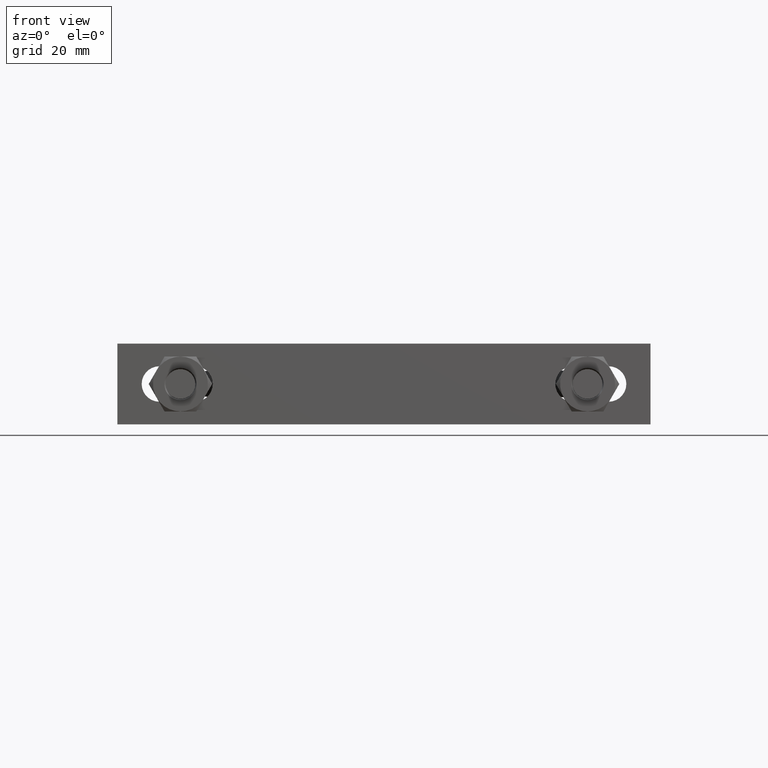
[diagram: clean part render]
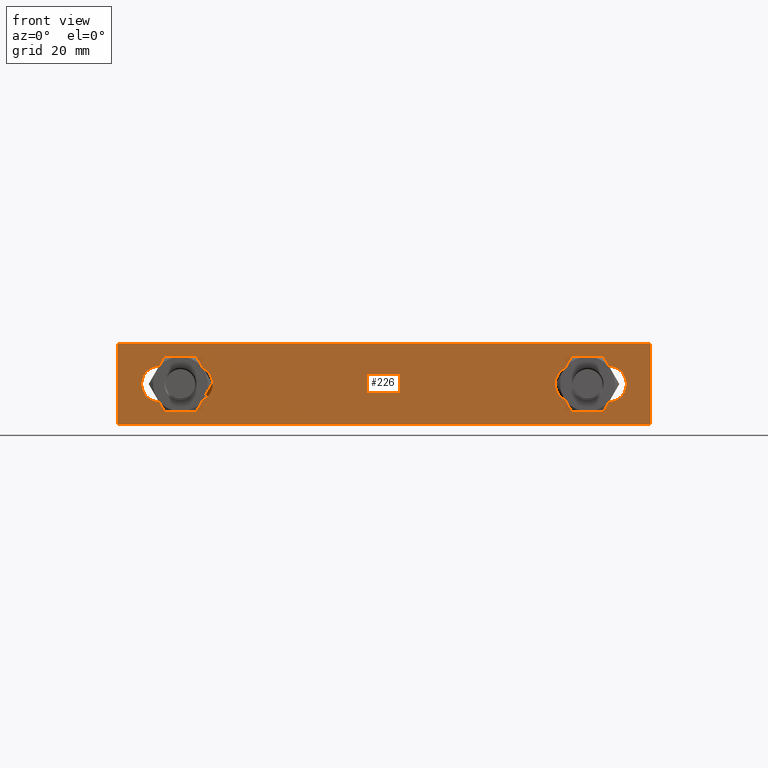
[diagram: same view with one face highlighted and labeled with its STEP entity id]
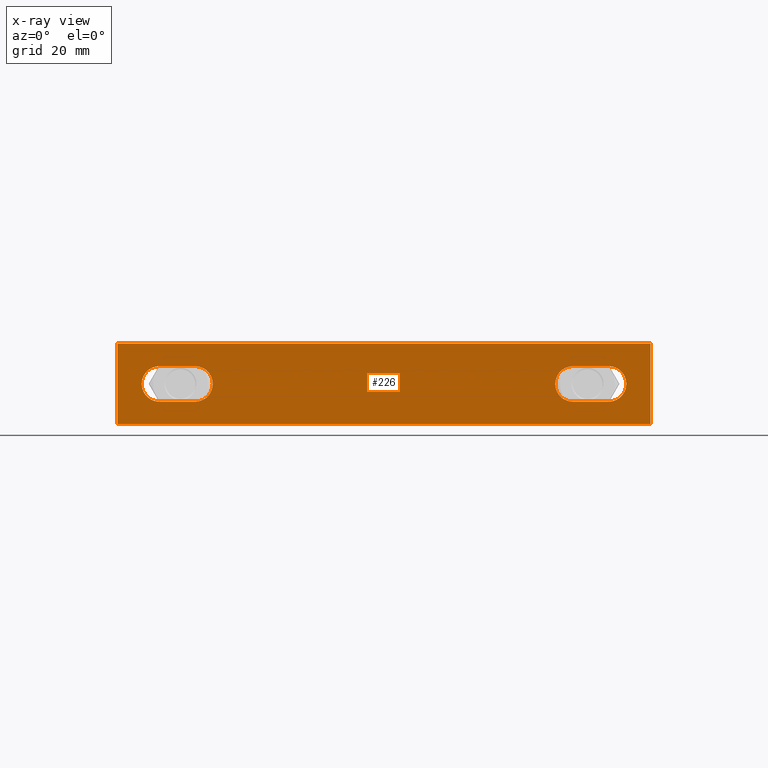
[diagram: x-ray of the same camera — body ghosted, the highlighted face saturated]
A machine part, front view. The second image highlights one B-rep face of the part: STEP entity #226.
The next image is the same camera in x-ray: the body ghosted, the highlighted face saturated — about 0% of this face is hidden behind the body in this view.
In plain terms, the highlighted planar face has unit normal (0, -1, 0).
Its self-contained STEP definition (entity closure, byte-faithful):
#226 = ADVANCED_FACE( '', ( #310, #311, #312 ), #313, .T. );
#310 = FACE_BOUND( '', #630, .T. );
#311 = FACE_OUTER_BOUND( '', #631, .T. );
#312 = FACE_BOUND( '', #632, .T. );
#313 = PLANE( '', #633 );
#630 = EDGE_LOOP( '', ( #802, #803, #804, #805, #806, #807 ) );
#631 = EDGE_LOOP( '', ( #808, #809, #810, #811 ) );
#632 = EDGE_LOOP( '', ( #812, #813, #814, #815, #816, #817 ) );
#633 = AXIS2_PLACEMENT_3D( '', #818, #819, #820 );
#802 = ORIENTED_EDGE( '', *, *, #1304, .F. );
#803 = ORIENTED_EDGE( '', *, *, #1305, .F. );
#804 = ORIENTED_EDGE( '', *, *, #1306, .F. );
#805 = ORIENTED_EDGE( '', *, *, #1307, .F. );
#806 = ORIENTED_EDGE( '', *, *, #1308, .F. );
#807 = ORIENTED_EDGE( '', *, *, #1309, .F. );
#808 = ORIENTED_EDGE( '', *, *, #1310, .T. );
#809 = ORIENTED_EDGE( '', *, *, #1311, .T. );
#810 = ORIENTED_EDGE( '', *, *, #1312, .T. );
#811 = ORIENTED_EDGE( '', *, *, #1313, .T. );
#812 = ORIENTED_EDGE( '', *, *, #1314, .F. );
#813 = ORIENTED_EDGE( '', *, *, #1315, .F. );
#814 = ORIENTED_EDGE( '', *, *, #1316, .F. );
#815 = ORIENTED_EDGE( '', *, *, #1317, .F. );
#816 = ORIENTED_EDGE( '', *, *, #1318, .F. );
#817 = ORIENTED_EDGE( '', *, *, #1319, .F. );
#818 = CARTESIAN_POINT( '', ( -82.5000000000000, -5.80000000000000, -12.5000000000000 ) );
#819 = DIRECTION( '', ( 0.000000000000000, -1.00000000000000, 6.12303176911189E-017 ) );
#820 = DIRECTION( '', ( 0.000000000000000, -6.12303176911189E-017, -1.00000000000000 ) );
#1304 = EDGE_CURVE( '', #1468, #1469, #1470, .T. );
#1305 = EDGE_CURVE( '', #1471, #1468, #1472, .F. );
#1306 = EDGE_CURVE( '', #1473, #1471, #1474, .F. );
#1307 = EDGE_CURVE( '', #1475, #1473, #1476, .T. );
#1308 = EDGE_CURVE( '', #1477, #1475, #1478, .F. );
#1309 = EDGE_CURVE( '', #1469, #1477, #1479, .F. );
#1310 = EDGE_CURVE( '', #1480, #1481, #1482, .T. );
#1311 = EDGE_CURVE( '', #1481, #1483, #1484, .T. );
#1312 = EDGE_CURVE( '', #1483, #1485, #1486, .T. );
#1313 = EDGE_CURVE( '', #1485, #1480, #1487, .T. );
#1314 = EDGE_CURVE( '', #1488, #1489, #1490, .T. );
#1315 = EDGE_CURVE( '', #1491, #1488, #1492, .F. );
#1316 = EDGE_CURVE( '', #1493, #1491, #1494, .F. );
#1317 = EDGE_CURVE( '', #1495, #1493, #1496, .T. );
#1318 = EDGE_CURVE( '', #1497, #1495, #1498, .F. );
#1319 = EDGE_CURVE( '', #1489, #1497, #1499, .F. );
#1468 = VERTEX_POINT( '', #1750 );
#1469 = VERTEX_POINT( '', #1751 );
#1470 = LINE( '', #1752, #1753 );
#1471 = VERTEX_POINT( '', #1754 );
#1472 = CIRCLE( '', #1755, 5.50000000000001 );
#1473 = VERTEX_POINT( '', #1756 );
#1474 = CIRCLE( '', #1757, 5.50000000000000 );
#1475 = VERTEX_POINT( '', #1758 );
#1476 = LINE( '', #1759, #1760 );
#1477 = VERTEX_POINT( '', #1761 );
#1478 = CIRCLE( '', #1762, 5.50000000000001 );
#1479 = CIRCLE( '', #1763, 5.50000000000000 );
#1480 = VERTEX_POINT( '', #1764 );
#1481 = VERTEX_POINT( '', #1765 );
#1482 = LINE( '', #1766, #1767 );
#1483 = VERTEX_POINT( '', #1768 );
#1484 = LINE( '', #1769, #1770 );
#1485 = VERTEX_POINT( '', #1771 );
#1486 = LINE( '', #1772, #1773 );
#1487 = LINE( '', #1774, #1775 );
#1488 = VERTEX_POINT( '', #1776 );
#1489 = VERTEX_POINT( '', #1777 );
#1490 = LINE( '', #1778, #1779 );
#1491 = VERTEX_POINT( '', #1780 );
#1492 = CIRCLE( '', #1781, 5.50000000000001 );
#1493 = VERTEX_POINT( '', #1782 );
#1494 = CIRCLE( '', #1783, 5.50000000000000 );
#1495 = VERTEX_POINT( '', #1784 );
#1496 = LINE( '', #1785, #1786 );
#1497 = VERTEX_POINT( '', #1787 );
#1498 = CIRCLE( '', #1788, 5.50000000000001 );
#1499 = CIRCLE( '', #1789, 5.50000000000000 );
#1750 = CARTESIAN_POINT( '', ( -69.5000000000000, -5.80000500000000, -5.50000000000000 ) );
#1751 = CARTESIAN_POINT( '', ( -58.5000000000000, -5.80000500000000, -5.50000000000000 ) );
#1752 = CARTESIAN_POINT( '', ( -69.5000000000000, -5.80001000000000, -5.50000000000000 ) );
#1753 = VECTOR( '', #2218, 1000.00000000000 );
#1754 = CARTESIAN_POINT( '', ( -75.0000000000000, -5.80000000000000, -2.23987420923171E-015 ) );
#1755 = AXIS2_PLACEMENT_3D( '', #2219, #2220, #2221 );
#1756 = CARTESIAN_POINT( '', ( -69.5000000000000, -5.80000000000000, 5.50000000000000 ) );
#1757 = AXIS2_PLACEMENT_3D( '', #2222, #2223, #2224 );
#1758 = CARTESIAN_POINT( '', ( -58.5000000000000, -5.80001000000000, 5.50000000000000 ) );
#1759 = CARTESIAN_POINT( '', ( -58.5000000000000, -5.80001000000000, 5.50000000000000 ) );
#1760 = VECTOR( '', #2225, 1000.00000000000 );
#1761 = CARTESIAN_POINT( '', ( -53.0000000000000, -5.80000000000000, -1.56634071462941E-015 ) );
#1762 = AXIS2_PLACEMENT_3D( '', #2226, #2227, #2228 );
#1763 = AXIS2_PLACEMENT_3D( '', #2229, #2230, #2231 );
#1764 = CARTESIAN_POINT( '', ( -82.5000000000000, -5.80000000000000, 12.5000000000000 ) );
#1765 = CARTESIAN_POINT( '', ( -82.5000000000000, -5.80000000000000, -12.5000000000000 ) );
#1766 = CARTESIAN_POINT( '', ( -82.5000000000000, -5.80000000000000, 12.5000000000000 ) );
#1767 = VECTOR( '', #2232, 1000.00000000000 );
#1768 = CARTESIAN_POINT( '', ( 82.5000000000000, -5.80000000000000, -12.5000000000000 ) );
#1769 = CARTESIAN_POINT( '', ( -82.5000000000000, -5.80000000000000, -12.5000000000000 ) );
#1770 = VECTOR( '', #2233, 1000.00000000000 );
#1771 = CARTESIAN_POINT( '', ( 82.5000000000000, -5.80000000000000, 12.5000000000000 ) );
#1772 = CARTESIAN_POINT( '', ( 82.5000000000000, -5.80000000000000, -12.5000000000000 ) );
#1773 = VECTOR( '', #2234, 1000.00000000000 );
#1774 = CARTESIAN_POINT( '', ( 82.5000000000000, -5.80000000000000, 12.5000000000000 ) );
#1775 = VECTOR( '', #2235, 1000.00000000000 );
#1776 = CARTESIAN_POINT( '', ( 58.5000000000000, -5.80000500000000, -5.50000000000000 ) );
#1777 = CARTESIAN_POINT( '', ( 69.5000000000000, -5.80000500000000, -5.50000000000000 ) );
#1778 = CARTESIAN_POINT( '', ( 58.5000000000000, -5.80001000000000, -5.50000000000000 ) );
#1779 = VECTOR( '', #2236, 1000.00000000000 );
#1780 = CARTESIAN_POINT( '', ( 53.0000000000000, -5.80000000000000, -2.23987420923171E-015 ) );
#1781 = AXIS2_PLACEMENT_3D( '', #2237, #2238, #2239 );
#1782 = CARTESIAN_POINT( '', ( 58.5000000000000, -5.80000000000000, 5.50000000000000 ) );
#1783 = AXIS2_PLACEMENT_3D( '', #2240, #2241, #2242 );
#1784 = CARTESIAN_POINT( '', ( 69.5000000000000, -5.80001000000000, 5.50000000000000 ) );
#1785 = CARTESIAN_POINT( '', ( 69.5000000000000, -5.80001000000000, 5.50000000000000 ) );
#1786 = VECTOR( '', #2243, 1000.00000000000 );
#1787 = CARTESIAN_POINT( '', ( 75.0000000000000, -5.80000000000000, -1.56634071462941E-015 ) );
#1788 = AXIS2_PLACEMENT_3D( '', #2244, #2245, #2246 );
#1789 = AXIS2_PLACEMENT_3D( '', #2247, #2248, #2249 );
#2218 = DIRECTION( '', ( 1.00000000000000, 0.000000000000000, -2.69760447322722E-065 ) );
#2219 = CARTESIAN_POINT( '', ( -69.5000000000000, -5.80000000000000, -1.73472408827998E-015 ) );
#2220 = DIRECTION( '', ( 0.000000000000000, 1.00000000000000, -6.12303176911189E-017 ) );
#2221 = DIRECTION( '', ( 0.000000000000000, 6.12303176911189E-017, 1.00000000000000 ) );
#2222 = CARTESIAN_POINT( '', ( -69.5000000000000, -5.80000000000000, -1.73472408827998E-015 ) );
#2223 = DIRECTION( '', ( 0.000000000000000, 1.00000000000000, -6.12303176911189E-017 ) );
#2224 = DIRECTION( '', ( 0.000000000000000, 6.12303176911189E-017, 1.00000000000000 ) );
#2225 = DIRECTION( '', ( -1.00000000000000, 0.000000000000000, 2.69760447322722E-065 ) );
#2226 = CARTESIAN_POINT( '', ( -58.5000000000000, -5.80000000000000, -1.73472408827998E-015 ) );
#2227 = DIRECTION( '', ( 0.000000000000000, 1.00000000000000, -6.12303176911189E-017 ) );
#2228 = DIRECTION( '', ( 0.000000000000000, 6.12303176911189E-017, 1.00000000000000 ) );
#2229 = CARTESIAN_POINT( '', ( -58.5000000000000, -5.80000000000000, -1.73472408827998E-015 ) );
#2230 = DIRECTION( '', ( 0.000000000000000, 1.00000000000000, -6.12303176911189E-017 ) );
#2231 = DIRECTION( '', ( 0.000000000000000, 6.12303176911189E-017, 1.00000000000000 ) );
#2232 = DIRECTION( '', ( 0.000000000000000, -6.12303176911189E-017, -1.00000000000000 ) );
#2233 = DIRECTION( '', ( 1.00000000000000, 0.000000000000000, 0.000000000000000 ) );
#2234 = DIRECTION( '', ( 0.000000000000000, 6.12303176911189E-017, 1.00000000000000 ) );
#2235 = DIRECTION( '', ( -1.00000000000000, 0.000000000000000, 0.000000000000000 ) );
#2236 = DIRECTION( '', ( 1.00000000000000, 0.000000000000000, 0.000000000000000 ) );
#2237 = CARTESIAN_POINT( '', ( 58.5000000000000, -5.80000000000000, -1.73472408827998E-015 ) );
#2238 = DIRECTION( '', ( 0.000000000000000, 1.00000000000000, -6.12303176911189E-017 ) );
#2239 = DIRECTION( '', ( 0.000000000000000, 6.12303176911189E-017, 1.00000000000000 ) );
#2240 = CARTESIAN_POINT( '', ( 58.5000000000000, -5.80000000000000, -1.73472408827998E-015 ) );
#2241 = DIRECTION( '', ( 0.000000000000000, 1.00000000000000, -6.12303176911189E-017 ) );
#2242 = DIRECTION( '', ( 0.000000000000000, 6.12303176911189E-017, 1.00000000000000 ) );
#2243 = DIRECTION( '', ( -1.00000000000000, 0.000000000000000, 0.000000000000000 ) );
#2244 = CARTESIAN_POINT( '', ( 69.5000000000000, -5.80000000000000, -1.73472408827998E-015 ) );
#2245 = DIRECTION( '', ( 0.000000000000000, 1.00000000000000, -6.12303176911189E-017 ) );
#2246 = DIRECTION( '', ( 0.000000000000000, 6.12303176911189E-017, 1.00000000000000 ) );
#2247 = CARTESIAN_POINT( '', ( 69.5000000000000, -5.80000000000000, -1.73472408827998E-015 ) );
#2248 = DIRECTION( '', ( 0.000000000000000, 1.00000000000000, -6.12303176911189E-017 ) );
#2249 = DIRECTION( '', ( 0.000000000000000, 6.12303176911189E-017, 1.00000000000000 ) );